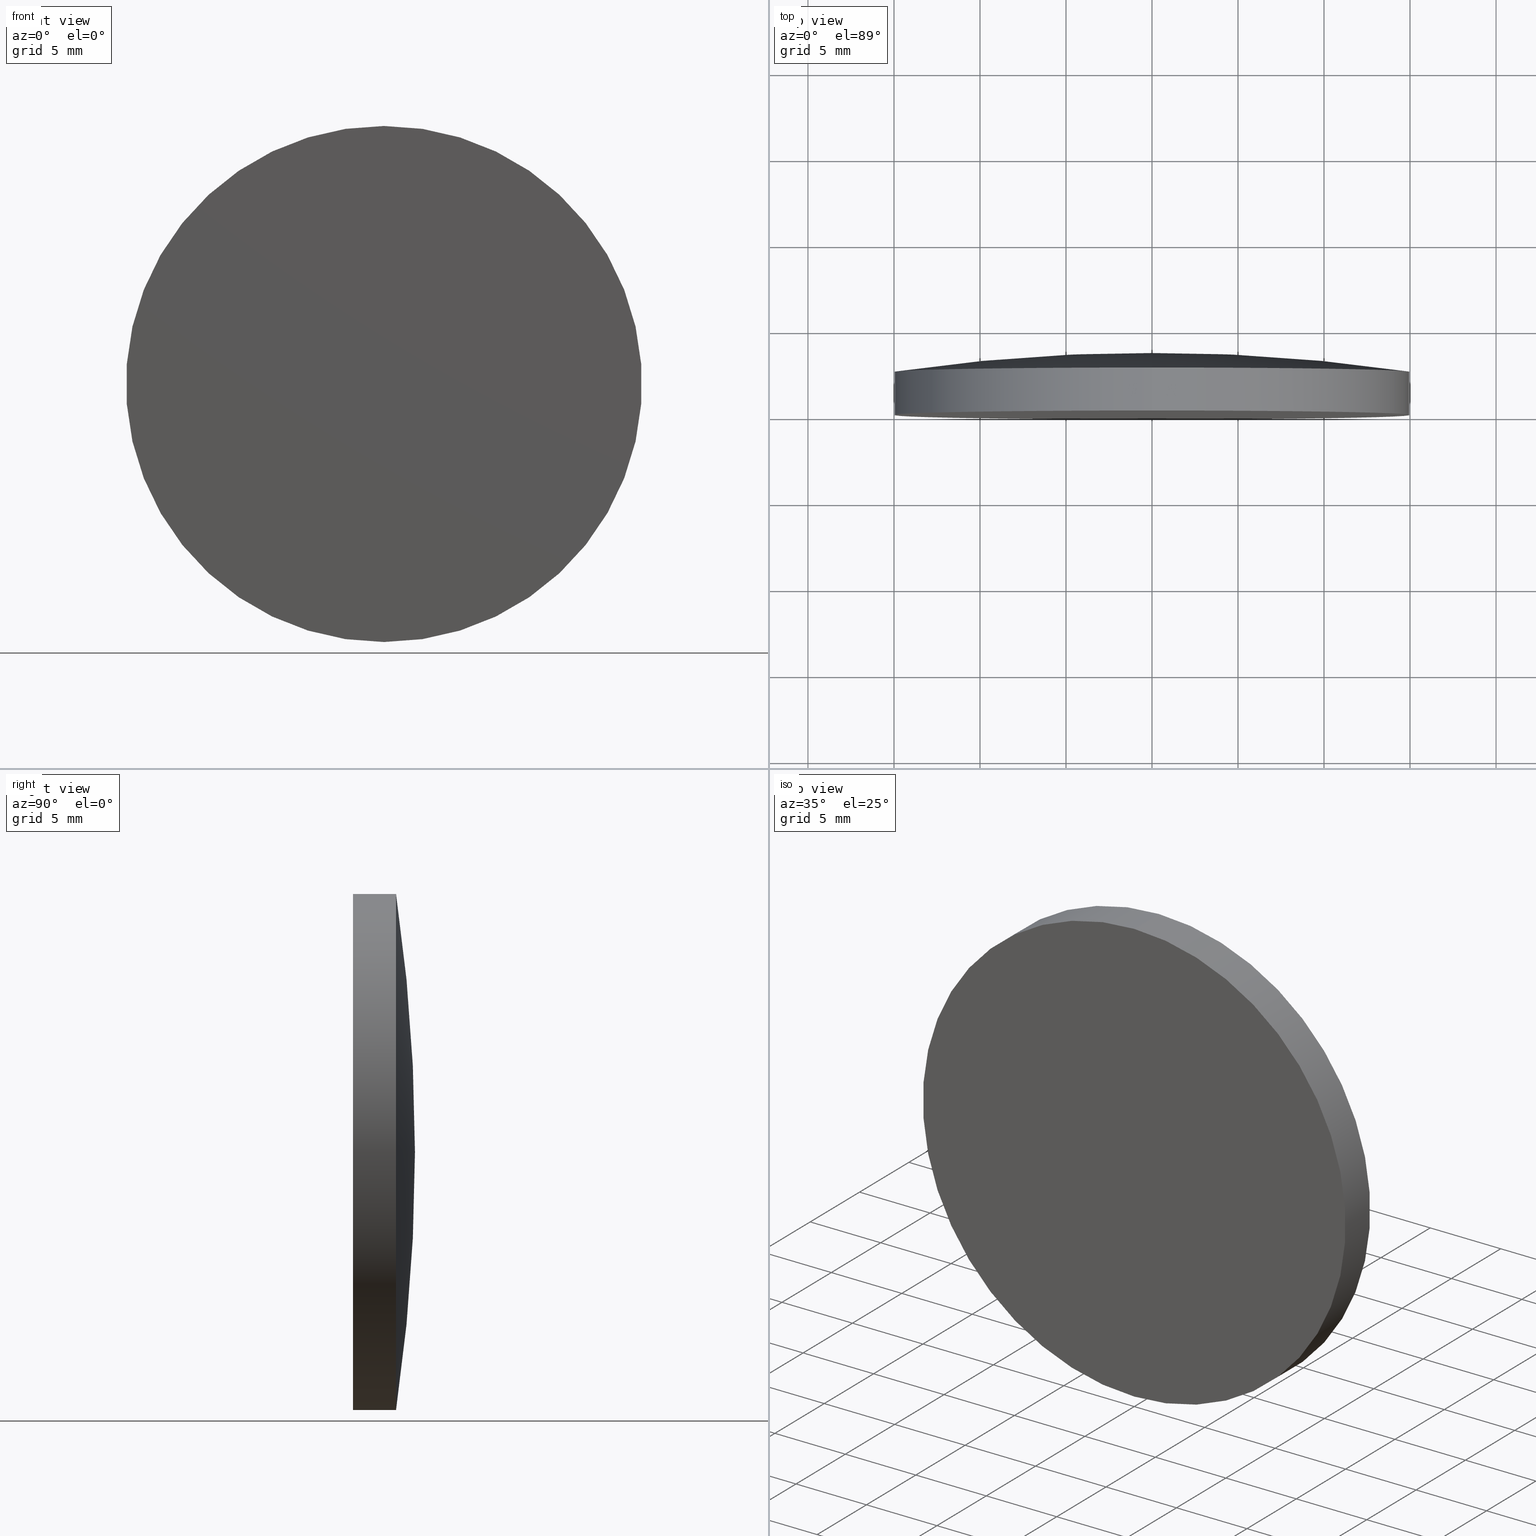
[diagram: canonical four-view strip — front | top / right | iso, engineering-drawing reading convention]
A machine part, canonical four-view strip (front | top / right | iso — engineering-drawing reading convention). The complete STEP part file that produces these views, byte-faithful:
ISO-10303-21;
HEADER;
FILE_DESCRIPTION (( 'STEP AP203' ),
    '1' );
FILE_NAME ('100601.STEP',
    '2024-05-10T02:05:12',
    ( '' ),
    ( '' ),
    'SwSTEP 2.0',
    'SolidWorks 2020',
    '' );
FILE_SCHEMA (( 'CONFIG_CONTROL_DESIGN' ));
ENDSEC;

DATA;
#1 = EDGE_CURVE ( 'NONE', #61, #75, #130, .T. ) ;
#2 = ORIENTED_EDGE ( 'NONE', *, *, #70, .T. ) ;
#3 = AXIS2_PLACEMENT_3D ( 'NONE', #160, #54, #192 ) ;
#4 = ORIENTED_EDGE ( 'NONE', *, *, #70, .F. ) ;
#5 = DIRECTION ( 'NONE',  ( 0.000000000000000000, 0.000000000000000000, 1.000000000000000000 ) ) ;
#6 = APPROVAL_PERSON_ORGANIZATION ( #84, #98, #131 ) ;
#7 = DIRECTION ( 'NONE',  ( -0.000000000000000000, 1.000000000000000000, -0.000000000000000000 ) ) ;
#8 = FACE_OUTER_BOUND ( 'NONE', #107, .T. ) ;
#9 = VECTOR ( 'NONE', #142, 1000.000000000000000 ) ;
#10 = APPROVAL_STATUS ( 'not_yet_approved' ) ;
#11 = CYLINDRICAL_SURFACE ( 'NONE', #59, 15.00000000000000000 ) ;
#12 =( GEOMETRIC_REPRESENTATION_CONTEXT ( 3 ) GLOBAL_UNCERTAINTY_ASSIGNED_CONTEXT ( ( #103 ) ) GLOBAL_UNIT_ASSIGNED_CONTEXT ( ( #38, #16, #65 ) ) REPRESENTATION_CONTEXT ( 'NONE', 'WORKASPACE' ) );
#13 = PERSON_AND_ORGANIZATION_ROLE ( 'creator' ) ;
#14 = AXIS2_PLACEMENT_3D ( 'NONE', #66, #144, #158 ) ;
#15 = LOCAL_TIME ( 10, 5, 12.00000000000000000, #104 ) ;
#16 =( NAMED_UNIT ( * ) PLANE_ANGLE_UNIT ( ) SI_UNIT ( $, .RADIAN. ) );
#17 = ORIENTED_EDGE ( 'NONE', *, *, #30, .T. ) ;
#18 = DIRECTION ( 'NONE',  ( 0.000000000000000000, 0.000000000000000000, 1.000000000000000000 ) ) ;
#19 = APPROVAL ( #80, 'δָ��' ) ;
#20 = PERSON_AND_ORGANIZATION ( #40, #105 ) ;
#21 = COORDINATED_UNIVERSAL_TIME_OFFSET ( 8, 0, .AHEAD. ) ;
#22 = PERSON_AND_ORGANIZATION ( #40, #105 ) ;
#23 = CALENDAR_DATE ( 2024, 10, 5 ) ;
#24 = APPROVAL_DATE_TIME ( #118, #98 ) ;
#25 = CC_DESIGN_PERSON_AND_ORGANIZATION_ASSIGNMENT ( #68, #193, ( #166 ) ) ;
#26 = AXIS2_PLACEMENT_3D ( 'NONE', #109, #7, #5 ) ;
#27 = ADVANCED_BREP_SHAPE_REPRESENTATION ( '100601', ( #200, #45 ), #12 ) ;
#28 = APPROVAL_PERSON_ORGANIZATION ( #178, #124, #99 ) ;
#29 = APPLICATION_PROTOCOL_DEFINITION ( 'international standard', 'config_control_design', 1994, #87 ) ;
#30 = EDGE_CURVE ( 'NONE', #94, #61, #67, .T. ) ;
#31 = DIRECTION ( 'NONE',  ( -0.000000000000000000, 1.000000000000000000, -0.000000000000000000 ) ) ;
#32 = ORIENTED_EDGE ( 'NONE', *, *, #151, .T. ) ;
#33 = FACE_OUTER_BOUND ( 'NONE', #169, .T. ) ;
#34 = PRODUCT_DEFINITION ( 'δ֪', '', #166, #161 ) ;
#35 = LINE ( 'NONE', #111, #185 ) ;
#36 = LOCAL_TIME ( 10, 5, 12.00000000000000000, #116 ) ;
#37 = DATE_TIME_ROLE ( 'creation_date' ) ;
#38 =( LENGTH_UNIT ( ) NAMED_UNIT ( * ) SI_UNIT ( .MILLI., .METRE. ) );
#39 = COORDINATED_UNIVERSAL_TIME_OFFSET ( 8, 0, .AHEAD. ) ;
#40 = PERSON ( 'δָ��', 'δָ��', 'δָ��', ('δָ��'), ('δָ��'), ('δָ��') ) ;
#41 = FACE_OUTER_BOUND ( 'NONE', #47, .T. ) ;
#42 = PERSON_AND_ORGANIZATION ( #40, #105 ) ;
#43 = LOCAL_TIME ( 10, 5, 12.00000000000000000, #39 ) ;
#44 = EDGE_CURVE ( 'NONE', #137, #126, #89, .T. ) ;
#45 = AXIS2_PLACEMENT_3D ( 'NONE', #135, #74, #150 ) ;
#46 = CIRCLE ( 'NONE', #133, 15.00000000000000000 ) ;
#47 = EDGE_LOOP ( 'NONE', ( #73, #2, #78, #152 ) ) ;
#48 = PRODUCT ( '100601', '100601', '', ( #72 ) ) ;
#49 = ORIENTED_EDGE ( 'NONE', *, *, #88, .T. ) ;
#50 = PRODUCT_RELATED_PRODUCT_CATEGORY ( 'detail', '', ( #48 ) ) ;
#51 = CARTESIAN_POINT ( 'NONE',  ( 1.836970198721033533E-15, 2.500000000000000444, -15.00000000000002842 ) ) ;
#52 = CARTESIAN_POINT ( 'NONE',  ( 0.000000000000000000, 3.600000000000000533, 0.000000000000000000 ) ) ;
#53 = DATE_AND_TIME ( #191, #36 ) ;
#54 = DIRECTION ( 'NONE',  ( -0.000000000000000000, 1.000000000000000000, -0.000000000000000000 ) ) ;
#55 = APPROVAL_STATUS ( 'not_yet_approved' ) ;
#56 = DIRECTION ( 'NONE',  ( 0.000000000000000000, -0.000000000000000000, -1.000000000000000000 ) ) ;
#57 = PERSON_AND_ORGANIZATION ( #40, #105 ) ;
#58 = CLOSED_SHELL ( 'NONE', ( #181, #168, #134, #82, #199 ) ) ;
#59 = AXIS2_PLACEMENT_3D ( 'NONE', #52, #157, #18 ) ;
#60 = ORIENTED_EDGE ( 'NONE', *, *, #151, .F. ) ;
#61 = VERTEX_POINT ( 'NONE', #51 ) ;
#62 = DIRECTION ( 'NONE',  ( -0.000000000000000000, 1.000000000000000000, -0.000000000000000000 ) ) ;
#63 = CARTESIAN_POINT ( 'NONE',  ( 0.000000000000000000, -9.184850993605147944E-16, 0.000000000000000000 ) ) ;
#64 = PRODUCT_DEFINITION_SHAPE ( 'NONE', 'NONE',  #34 ) ;
#65 =( NAMED_UNIT ( * ) SI_UNIT ( $, .STERADIAN. ) SOLID_ANGLE_UNIT ( ) );
#66 = CARTESIAN_POINT ( 'NONE',  ( 0.000000000000000000, -99.67999455626598149, 0.000000000000000000 ) ) ;
#67 = CIRCLE ( 'NONE', #155, 15.00000000000000000 ) ;
#68 = PERSON_AND_ORGANIZATION ( #40, #105 ) ;
#69 = CARTESIAN_POINT ( 'NONE',  ( -4.106600044365310216E-18, -99.67999455626598149, 0.03353293412618630481 ) ) ;
#70 = EDGE_CURVE ( 'NONE', #137, #61, #188, .T. ) ;
#71 = PERSON_AND_ORGANIZATION_ROLE ( 'creator' ) ;
#72 = MECHANICAL_CONTEXT ( 'NONE', #87, 'mechanical' ) ;
#73 = ORIENTED_EDGE ( 'NONE', *, *, #122, .T. ) ;
#74 = DIRECTION ( 'NONE',  ( 0.000000000000000000, 0.000000000000000000, 1.000000000000000000 ) ) ;
#75 = VERTEX_POINT ( 'NONE', #96 ) ;
#76 = AXIS2_PLACEMENT_3D ( 'NONE', #69, #194, #83 ) ;
#77 = CARTESIAN_POINT ( 'NONE',  ( 0.000000000000000000, 2.499999999999998224, 0.000000000000000000 ) ) ;
#78 = ORIENTED_EDGE ( 'NONE', *, *, #30, .F. ) ;
#79 = DIRECTION ( 'NONE',  ( 0.000000000000000000, 0.000000000000000000, 1.000000000000000000 ) ) ;
#80 = APPROVAL_STATUS ( 'not_yet_approved' ) ;
#81 = CARTESIAN_POINT ( 'NONE',  ( 0.000000000000000000, -1.734723475976807094E-15, 0.000000000000000000 ) ) ;
#82 = ADVANCED_FACE ( 'NONE', ( #33 ), #154, .T. ) ;
#83 = DIRECTION ( 'NONE',  ( 1.224646799147353207E-16, 0.000000000000000000, -1.000000000000000000 ) ) ;
#84 = PERSON_AND_ORGANIZATION ( #40, #105 ) ;
#85 = DIRECTION ( 'NONE',  ( 0.000000000000000000, 0.000000000000000000, 1.000000000000000000 ) ) ;
#86 = SECURITY_CLASSIFICATION ( '', '', #180 ) ;
#87 = APPLICATION_CONTEXT ( 'configuration controlled 3d designs of mechanical parts and assemblies' ) ;
#88 = EDGE_CURVE ( 'NONE', #126, #94, #35, .T. ) ;
#89 = CIRCLE ( 'NONE', #183, 15.00000000000000000 ) ;
#90 = APPROVAL_PERSON_ORGANIZATION ( #20, #19, #141 ) ;
#91 = ORIENTED_EDGE ( 'NONE', *, *, #1, .T. ) ;
#92 = EDGE_LOOP ( 'NONE', ( #17, #91, #60 ) ) ;
#93 = PERSON_AND_ORGANIZATION ( #40, #105 ) ;
#94 = VERTEX_POINT ( 'NONE', #127 ) ;
#95 = TOROIDAL_SURFACE ( 'NONE', #14, -0.03353293412618630481, 103.2800000000000296 ) ;
#96 = CARTESIAN_POINT ( 'NONE',  ( 0.000000000000000000, 3.600000000000000533, 0.000000000000000000 ) ) ;
#97 = CARTESIAN_POINT ( 'NONE',  ( 1.836970198721029589E-15, -1.734723475976807094E-15, -15.00000000000000000 ) ) ;
#98 = APPROVAL ( #10, 'δָ��' ) ;
#99 = APPROVAL_ROLE ( '' ) ;
#100 = CARTESIAN_POINT ( 'NONE',  ( 1.836970198721029589E-15, 3.600000000000000533, -15.00000000000000000 ) ) ;
#101 = CALENDAR_DATE ( 2024, 10, 5 ) ;
#102 = DIRECTION ( 'NONE',  ( -0.000000000000000000, 1.000000000000000000, -0.000000000000000000 ) ) ;
#103 = UNCERTAINTY_MEASURE_WITH_UNIT (LENGTH_MEASURE( 1.000000000000000082E-05 ), #38, 'distance_accuracy_value', 'NONE');
#104 = COORDINATED_UNIVERSAL_TIME_OFFSET ( 8, 0, .AHEAD. ) ;
#105 = ORGANIZATION ( 'δָ��', 'δָ��', '' ) ;
#106 = AXIS2_PLACEMENT_3D ( 'NONE', #146, #176, #138 ) ;
#107 = EDGE_LOOP ( 'NONE', ( #156, #128, #32 ) ) ;
#108 = CC_DESIGN_APPROVAL ( #124, ( #86 ) ) ;
#109 = CARTESIAN_POINT ( 'NONE',  ( 0.000000000000000000, -99.67999455626598149, 0.000000000000000000 ) ) ;
#110 = ORIENTED_EDGE ( 'NONE', *, *, #44, .F. ) ;
#111 = CARTESIAN_POINT ( 'NONE',  ( 0.000000000000000000, 3.600000000000000533, 15.00000000000000000 ) ) ;
#112 = PERSON_AND_ORGANIZATION_ROLE ( 'design_owner' ) ;
#113 = CARTESIAN_POINT ( 'NONE',  ( 0.000000000000000000, 3.600000000000000533, 0.000000000000000000 ) ) ;
#114 = COORDINATED_UNIVERSAL_TIME_OFFSET ( 8, 0, .AHEAD. ) ;
#115 = DIRECTION ( 'NONE',  ( 0.000000000000000000, 0.000000000000000000, 1.000000000000000000 ) ) ;
#116 = COORDINATED_UNIVERSAL_TIME_OFFSET ( 8, 0, .AHEAD. ) ;
#117 = CARTESIAN_POINT ( 'NONE',  ( 0.000000000000000000, -1.734723475976807094E-15, 15.00000000000000000 ) ) ;
#118 = DATE_AND_TIME ( #145, #15 ) ;
#119 = TOROIDAL_SURFACE ( 'NONE', #26, -0.03353293412618630481, 103.2800000000000296 ) ;
#120 = CC_DESIGN_APPROVAL ( #98, ( #166 ) ) ;
#121 = AXIS2_PLACEMENT_3D ( 'NONE', #63, #173, #56 ) ;
#122 = EDGE_CURVE ( 'NONE', #126, #137, #148, .T. ) ;
#123 = LOCAL_TIME ( 10, 5, 12.00000000000000000, #21 ) ;
#124 = APPROVAL ( #55, 'δָ��' ) ;
#125 = CC_DESIGN_PERSON_AND_ORGANIZATION_ASSIGNMENT ( #42, #165, ( #86 ) ) ;
#126 = VERTEX_POINT ( 'NONE', #117 ) ;
#127 = CARTESIAN_POINT ( 'NONE',  ( 0.000000000000000000, 2.500000000000000444, 15.00000000000002842 ) ) ;
#128 = ORIENTED_EDGE ( 'NONE', *, *, #163, .T. ) ;
#129 = DIRECTION ( 'NONE',  ( -0.000000000000000000, 1.000000000000000000, -0.000000000000000000 ) ) ;
#130 = CIRCLE ( 'NONE', #76, 103.2800000000000296 ) ;
#131 = APPROVAL_ROLE ( '' ) ;
#132 = FACE_OUTER_BOUND ( 'NONE', #189, .T. ) ;
#133 = AXIS2_PLACEMENT_3D ( 'NONE', #77, #179, #79 ) ;
#134 = ADVANCED_FACE ( 'NONE', ( #8 ), #119, .T. ) ;
#135 = CARTESIAN_POINT ( 'NONE',  ( 0.000000000000000000, 0.000000000000000000, 0.000000000000000000 ) ) ;
#136 = CC_DESIGN_PERSON_AND_ORGANIZATION_ASSIGNMENT ( #22, #13, ( #166 ) ) ;
#137 = VERTEX_POINT ( 'NONE', #97 ) ;
#138 = DIRECTION ( 'NONE',  ( 0.000000000000000000, 0.000000000000000000, 1.000000000000000000 ) ) ;
#139 = AXIS2_PLACEMENT_3D ( 'NONE', #113, #102, #164 ) ;
#140 = ORIENTED_EDGE ( 'NONE', *, *, #163, .F. ) ;
#141 = APPROVAL_ROLE ( '' ) ;
#142 = DIRECTION ( 'NONE',  ( -0.000000000000000000, 1.000000000000000000, -0.000000000000000000 ) ) ;
#143 = DATE_AND_TIME ( #159, #123 ) ;
#144 = DIRECTION ( 'NONE',  ( -0.000000000000000000, 1.000000000000000000, -0.000000000000000000 ) ) ;
#145 = CALENDAR_DATE ( 2024, 10, 5 ) ;
#146 = CARTESIAN_POINT ( 'NONE',  ( 0.000000000000000000, -99.67999455626598149, -0.03353293412618630481 ) ) ;
#147 = APPROVAL_DATE_TIME ( #182, #124 ) ;
#148 = CIRCLE ( 'NONE', #3, 15.00000000000000000 ) ;
#149 = CC_DESIGN_DATE_AND_TIME_ASSIGNMENT ( #143, #37, ( #34 ) ) ;
#150 = DIRECTION ( 'NONE',  ( 1.000000000000000000, 0.000000000000000000, 0.000000000000000000 ) ) ;
#151 = EDGE_CURVE ( 'NONE', #94, #75, #196, .T. ) ;
#152 = ORIENTED_EDGE ( 'NONE', *, *, #88, .F. ) ;
#153 = ORIENTED_EDGE ( 'NONE', *, *, #122, .F. ) ;
#154 = PLANE ( 'NONE',  #121 ) ;
#155 = AXIS2_PLACEMENT_3D ( 'NONE', #170, #31, #115 ) ;
#156 = ORIENTED_EDGE ( 'NONE', *, *, #1, .F. ) ;
#157 = DIRECTION ( 'NONE',  ( -0.000000000000000000, 1.000000000000000000, -0.000000000000000000 ) ) ;
#158 = DIRECTION ( 'NONE',  ( 0.000000000000000000, 0.000000000000000000, 1.000000000000000000 ) ) ;
#159 = CALENDAR_DATE ( 2024, 10, 5 ) ;
#160 = CARTESIAN_POINT ( 'NONE',  ( 0.000000000000000000, -1.734723475976807094E-15, 0.000000000000000000 ) ) ;
#161 = DESIGN_CONTEXT ( 'detailed design', #167, 'design' ) ;
#162 = DATE_AND_TIME ( #101, #174 ) ;
#163 = EDGE_CURVE ( 'NONE', #61, #94, #46, .T. ) ;
#164 = DIRECTION ( 'NONE',  ( 0.000000000000000000, 0.000000000000000000, 1.000000000000000000 ) ) ;
#165 = PERSON_AND_ORGANIZATION_ROLE ( 'classification_officer' ) ;
#166 = PRODUCT_DEFINITION_FORMATION_WITH_SPECIFIED_SOURCE ( '�κ�', '', #48, .NOT_KNOWN. ) ;
#167 = APPLICATION_CONTEXT ( 'configuration controlled 3d designs of mechanical parts and assemblies' ) ;
#168 = ADVANCED_FACE ( 'NONE', ( #171 ), #95, .T. ) ;
#169 = EDGE_LOOP ( 'NONE', ( #153, #110 ) ) ;
#170 = CARTESIAN_POINT ( 'NONE',  ( 0.000000000000000000, 2.499999999999998224, 0.000000000000000000 ) ) ;
#171 = FACE_OUTER_BOUND ( 'NONE', #92, .T. ) ;
#172 = APPLICATION_PROTOCOL_DEFINITION ( 'international standard', 'config_control_design', 1994, #167 ) ;
#173 = DIRECTION ( 'NONE',  ( 0.000000000000000000, -1.000000000000000000, 0.000000000000000000 ) ) ;
#174 = LOCAL_TIME ( 10, 5, 12.00000000000000000, #114 ) ;
#175 = DATE_TIME_ROLE ( 'classification_date' ) ;
#176 = DIRECTION ( 'NONE',  ( -1.000000000000000000, 0.000000000000000000, 0.000000000000000000 ) ) ;
#177 = CC_DESIGN_PERSON_AND_ORGANIZATION_ASSIGNMENT ( #93, #112, ( #48 ) ) ;
#178 = PERSON_AND_ORGANIZATION ( #40, #105 ) ;
#179 = DIRECTION ( 'NONE',  ( -0.000000000000000000, 1.000000000000000000, -0.000000000000000000 ) ) ;
#180 = SECURITY_CLASSIFICATION_LEVEL ( 'unclassified' ) ;
#181 = ADVANCED_FACE ( 'NONE', ( #41 ), #11, .T. ) ;
#182 = DATE_AND_TIME ( #23, #43 ) ;
#183 = AXIS2_PLACEMENT_3D ( 'NONE', #81, #62, #85 ) ;
#184 = CC_DESIGN_APPROVAL ( #19, ( #34 ) ) ;
#185 = VECTOR ( 'NONE', #129, 1000.000000000000000 ) ;
#186 = CC_DESIGN_PERSON_AND_ORGANIZATION_ASSIGNMENT ( #57, #71, ( #34 ) ) ;
#187 = ORIENTED_EDGE ( 'NONE', *, *, #44, .T. ) ;
#188 = LINE ( 'NONE', #100, #9 ) ;
#189 = EDGE_LOOP ( 'NONE', ( #4, #187, #49, #140 ) ) ;
#190 = CYLINDRICAL_SURFACE ( 'NONE', #139, 15.00000000000000000 ) ;
#191 = CALENDAR_DATE ( 2024, 10, 5 ) ;
#192 = DIRECTION ( 'NONE',  ( 0.000000000000000000, 0.000000000000000000, 1.000000000000000000 ) ) ;
#193 = PERSON_AND_ORGANIZATION_ROLE ( 'design_supplier' ) ;
#194 = DIRECTION ( 'NONE',  ( 1.000000000000000000, 0.000000000000000000, 1.224646799147353207E-16 ) ) ;
#195 = APPROVAL_DATE_TIME ( #162, #19 ) ;
#196 = CIRCLE ( 'NONE', #106, 103.2800000000000296 ) ;
#197 = CC_DESIGN_DATE_AND_TIME_ASSIGNMENT ( #53, #175, ( #86 ) ) ;
#198 = SHAPE_DEFINITION_REPRESENTATION ( #64, #27 ) ;
#199 = ADVANCED_FACE ( 'NONE', ( #132 ), #190, .T. ) ;
#200 = MANIFOLD_SOLID_BREP ( '��ת1', #58 ) ;
#201 = CC_DESIGN_SECURITY_CLASSIFICATION ( #86, ( #166 ) ) ;
ENDSEC;
END-ISO-10303-21;
